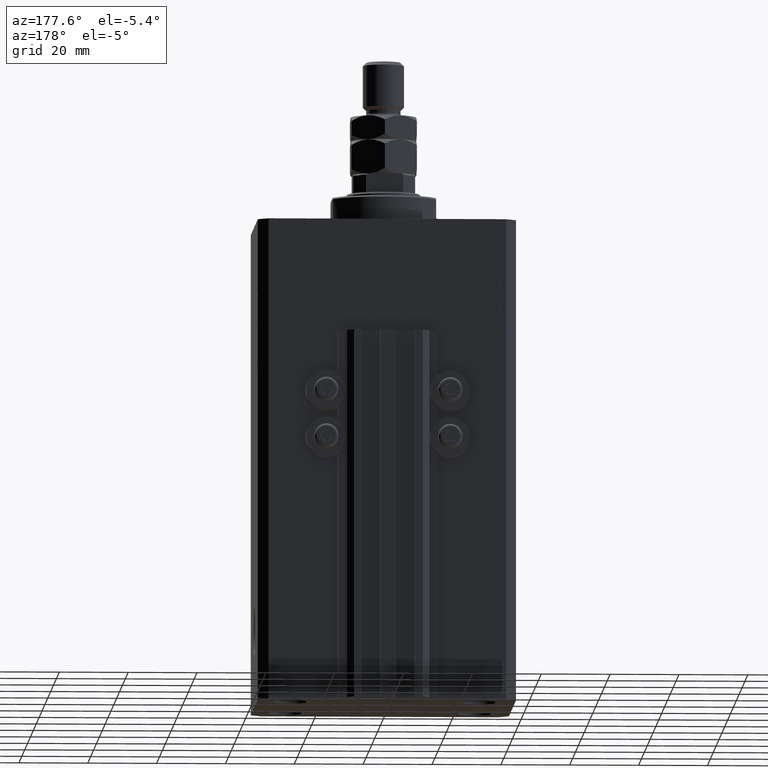
[diagram: clean part render]
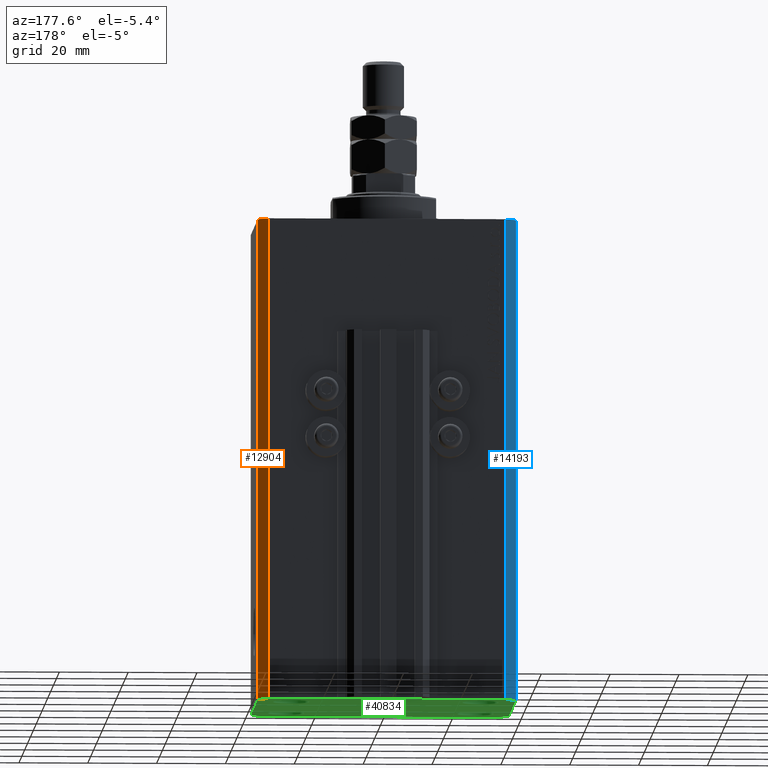
[diagram: same view with three faces highlighted in distinct colors, each labeled with its STEP entity id]
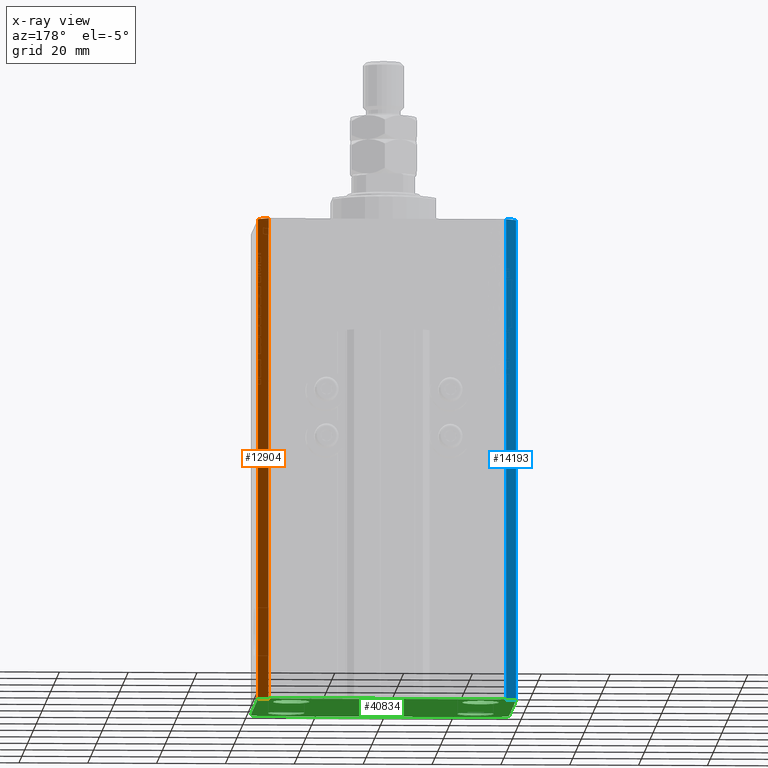
[diagram: x-ray of the same camera — body ghosted, the three highlighted faces saturated]
A machine part, auxiliary view with three faces highlighted in distinct colors.
The next image is the same camera in x-ray (body ghosted, the three faces saturated) — at least one of them is partly hidden behind the body in this view.
Their STEP definitions:

[orange] entity #12904 — the highlighted planar face has unit normal (0.7071, 0.7071, 0).
#3121 = VECTOR ( 'NONE', #46847, 1000.000000000000000 ) ;
#3393 = EDGE_CURVE ( 'NONE', #15188, #3406, #23895, .T. ) ;
#3406 = VERTEX_POINT ( 'NONE', #13272 ) ;
#6123 = CARTESIAN_POINT ( 'NONE',  ( 34.50000000000056843, 27.50000000000000000, -140.0000000000000000 ) ) ;
#6228 = ORIENTED_EDGE ( 'NONE', *, *, #46294, .F. ) ;
#6261 = CARTESIAN_POINT ( 'NONE',  ( 37.50000000000051870, 24.49999999999995381, -140.0000000000000000 ) ) ;
#8514 = CARTESIAN_POINT ( 'NONE',  ( 37.50000000000051870, 24.49999999999995381, -140.0000000000000000 ) ) ;
#10143 = EDGE_LOOP ( 'NONE', ( #12517, #6228, #38664, #46223 ) ) ;
#11400 = DIRECTION ( 'NONE',  ( 0.000000000000000000, 0.000000000000000000, 1.000000000000000000 ) ) ;
#12227 = FACE_OUTER_BOUND ( 'NONE', #10143, .T. ) ;
#12517 = ORIENTED_EDGE ( 'NONE', *, *, #3393, .F. ) ;
#12525 = VECTOR ( 'NONE', #13034, 1000.000000000000114 ) ;
#12904 = ADVANCED_FACE ( 'NONE', ( #12227 ), #46526, .T. ) ;
#12989 = CARTESIAN_POINT ( 'NONE',  ( 37.50000000000051870, 24.49999999999995381, -140.0000000000000000 ) ) ;
#13034 = DIRECTION ( 'NONE',  ( -0.7071067811865364705, 0.7071067811865584529, 0.000000000000000000 ) ) ;
#13272 = CARTESIAN_POINT ( 'NONE',  ( 34.50000000000056843, 27.50000000000000000, 0.000000000000000000 ) ) ;
#15188 = VERTEX_POINT ( 'NONE', #19561 ) ;
#16253 = CARTESIAN_POINT ( 'NONE',  ( 37.50000000000051870, 24.49999999999995381, 0.000000000000000000 ) ) ;
#17631 = DIRECTION ( 'NONE',  ( -0.7071067811865364705, 0.7071067811865584529, 0.000000000000000000 ) ) ;
#18603 = VERTEX_POINT ( 'NONE', #48506 ) ;
#19561 = CARTESIAN_POINT ( 'NONE',  ( 37.50000000000051870, 24.49999999999995381, 0.000000000000000000 ) ) ;
#21194 = LINE ( 'NONE', #6123, #3121 ) ;
#23039 = AXIS2_PLACEMENT_3D ( 'NONE', #8514, #23334, #38383 ) ;
#23334 = DIRECTION ( 'NONE',  ( 0.7071067811865585639, 0.7071067811865364705, -0.000000000000000000 ) ) ;
#23895 = LINE ( 'NONE', #16253, #12525 ) ;
#24155 = VECTOR ( 'NONE', #17631, 1000.000000000000114 ) ;
#28354 = EDGE_CURVE ( 'NONE', #46022, #18603, #32902, .T. ) ;
#30651 = LINE ( 'NONE', #34106, #42485 ) ;
#32902 = LINE ( 'NONE', #6261, #24155 ) ;
#34106 = CARTESIAN_POINT ( 'NONE',  ( 37.50000000000051870, 24.49999999999995381, -140.0000000000000000 ) ) ;
#38383 = DIRECTION ( 'NONE',  ( -0.7071067811865364705, 0.7071067811865585639, 0.000000000000000000 ) ) ;
#38664 = ORIENTED_EDGE ( 'NONE', *, *, #28354, .T. ) ;
#42485 = VECTOR ( 'NONE', #11400, 1000.000000000000000 ) ;
#43462 = EDGE_CURVE ( 'NONE', #18603, #3406, #21194, .T. ) ;
#46022 = VERTEX_POINT ( 'NONE', #12989 ) ;
#46223 = ORIENTED_EDGE ( 'NONE', *, *, #43462, .T. ) ;
#46294 = EDGE_CURVE ( 'NONE', #46022, #15188, #30651, .T. ) ;
#46526 = PLANE ( 'NONE',  #23039 ) ;
#46847 = DIRECTION ( 'NONE',  ( 0.000000000000000000, 0.000000000000000000, 1.000000000000000000 ) ) ;
#48506 = CARTESIAN_POINT ( 'NONE',  ( 34.50000000000056843, 27.50000000000000000, -140.0000000000000000 ) ) ;

[blue] entity #14193 — the highlighted planar face has unit normal (-0.7071, 0.7071, 0).
#3035 = CARTESIAN_POINT ( 'NONE',  ( -34.49999999999999289, 27.50000000000000000, -140.0000000000000000 ) ) ;
#3318 = CARTESIAN_POINT ( 'NONE',  ( -34.49999999999999289, 27.50000000000000000, 0.000000000000000000 ) ) ;
#6861 = CARTESIAN_POINT ( 'NONE',  ( -37.49999999999999289, 24.50000000000000000, -140.0000000000000000 ) ) ;
#8050 = EDGE_CURVE ( 'NONE', #15759, #18055, #46765, .T. ) ;
#8253 = ORIENTED_EDGE ( 'NONE', *, *, #41124, .F. ) ;
#8550 = ORIENTED_EDGE ( 'NONE', *, *, #32521, .F. ) ;
#11690 = LINE ( 'NONE', #3318, #35377 ) ;
#12606 = VERTEX_POINT ( 'NONE', #18188 ) ;
#12654 = DIRECTION ( 'NONE',  ( 0.000000000000000000, 0.000000000000000000, 1.000000000000000000 ) ) ;
#12963 = DIRECTION ( 'NONE',  ( 0.000000000000000000, 0.000000000000000000, 1.000000000000000000 ) ) ;
#13751 = VECTOR ( 'NONE', #12654, 1000.000000000000000 ) ;
#14193 = ADVANCED_FACE ( 'NONE', ( #18347 ), #37329, .T. ) ;
#15263 = AXIS2_PLACEMENT_3D ( 'NONE', #3035, #18103, #36608 ) ;
#15677 = ORIENTED_EDGE ( 'NONE', *, *, #8050, .T. ) ;
#15759 = VERTEX_POINT ( 'NONE', #6861 ) ;
#16366 = LINE ( 'NONE', #46462, #13751 ) ;
#17041 = EDGE_CURVE ( 'NONE', #12606, #15759, #46128, .T. ) ;
#17639 = CARTESIAN_POINT ( 'NONE',  ( -37.49999999999999289, 24.50000000000000000, 0.000000000000000000 ) ) ;
#18055 = VERTEX_POINT ( 'NONE', #17639 ) ;
#18103 = DIRECTION ( 'NONE',  ( -0.7071067811865479058, 0.7071067811865471286, 0.000000000000000000 ) ) ;
#18188 = CARTESIAN_POINT ( 'NONE',  ( -34.49999999999999289, 27.50000000000000000, -140.0000000000000000 ) ) ;
#18347 = FACE_OUTER_BOUND ( 'NONE', #23499, .T. ) ;
#18875 = DIRECTION ( 'NONE',  ( -0.7071067811865471286, -0.7071067811865479058, 0.000000000000000000 ) ) ;
#23400 = ORIENTED_EDGE ( 'NONE', *, *, #17041, .T. ) ;
#23499 = EDGE_LOOP ( 'NONE', ( #8253, #8550, #23400, #15677 ) ) ;
#25584 = VECTOR ( 'NONE', #34534, 1000.000000000000000 ) ;
#26642 = CARTESIAN_POINT ( 'NONE',  ( -34.49999999999999289, 27.50000000000000000, -140.0000000000000000 ) ) ;
#30214 = VERTEX_POINT ( 'NONE', #33894 ) ;
#32521 = EDGE_CURVE ( 'NONE', #12606, #30214, #16366, .T. ) ;
#33894 = CARTESIAN_POINT ( 'NONE',  ( -34.49999999999999289, 27.50000000000000000, 0.000000000000000000 ) ) ;
#34534 = DIRECTION ( 'NONE',  ( -0.7071067811865471286, -0.7071067811865479058, 0.000000000000000000 ) ) ;
#35377 = VECTOR ( 'NONE', #18875, 1000.000000000000000 ) ;
#36608 = DIRECTION ( 'NONE',  ( -0.7071067811865471286, -0.7071067811865479058, 0.000000000000000000 ) ) ;
#37329 = PLANE ( 'NONE',  #15263 ) ;
#41124 = EDGE_CURVE ( 'NONE', #30214, #18055, #11690, .T. ) ;
#43332 = VECTOR ( 'NONE', #12963, 1000.000000000000000 ) ;
#46128 = LINE ( 'NONE', #26642, #25584 ) ;
#46277 = CARTESIAN_POINT ( 'NONE',  ( -37.49999999999999289, 24.50000000000000000, -140.0000000000000000 ) ) ;
#46462 = CARTESIAN_POINT ( 'NONE',  ( -34.49999999999999289, 27.50000000000000000, -140.0000000000000000 ) ) ;
#46765 = LINE ( 'NONE', #46277, #43332 ) ;

[green] entity #40834 — the highlighted planar face has unit normal (0, 0, 1).
#43 = EDGE_CURVE ( 'NONE', #43042, #26188, #43144, .T. ) ;
#767 = DIRECTION ( 'NONE',  ( 0.7071067811865474617, 0.7071067811865474617, 0.000000000000000000 ) ) ;
#925 = EDGE_CURVE ( 'NONE', #15759, #21302, #38767, .T. ) ;
#1163 = CIRCLE ( 'NONE', #38180, 5.250000000000000888 ) ;
#1880 = LINE ( 'NONE', #31980, #39359 ) ;
#2528 = ORIENTED_EDGE ( 'NONE', *, *, #925, .F. ) ;
#4097 = DIRECTION ( 'NONE',  ( 1.000000000000000000, 0.000000000000000000, 0.000000000000000000 ) ) ;
#4845 = DIRECTION ( 'NONE',  ( -0.000000000000000000, -0.000000000000000000, -1.000000000000000000 ) ) ;
#5081 = EDGE_LOOP ( 'NONE', ( #28877, #42931 ) ) ;
#5121 = LINE ( 'NONE', #20185, #34077 ) ;
#5395 = DIRECTION ( 'NONE',  ( -1.000000000000000000, 0.000000000000000000, 0.000000000000000000 ) ) ;
#5586 = CIRCLE ( 'NONE', #33159, 5.250000000000000888 ) ;
#6261 = CARTESIAN_POINT ( 'NONE',  ( 37.50000000000051870, 24.49999999999995381, -140.0000000000000000 ) ) ;
#6861 = CARTESIAN_POINT ( 'NONE',  ( -37.49999999999999289, 24.50000000000000000, -140.0000000000000000 ) ) ;
#7386 = CARTESIAN_POINT ( 'NONE',  ( -27.50000000000000000, 17.49999999999999645, -140.0000000000000000 ) ) ;
#7436 = EDGE_CURVE ( 'NONE', #20187, #33546, #45637, .T. ) ;
#7790 = CARTESIAN_POINT ( 'NONE',  ( -27.49999999999999289, -17.50000000000000000, -140.0000000000000000 ) ) ;
#8369 = AXIS2_PLACEMENT_3D ( 'NONE', #32496, #21155, #28309 ) ;
#8545 = EDGE_CURVE ( 'NONE', #16848, #11132, #19529, .T. ) ;
#8702 = DIRECTION ( 'NONE',  ( 1.000000000000000000, 0.000000000000000000, 0.000000000000000000 ) ) ;
#9135 = DIRECTION ( 'NONE',  ( 1.000000000000000000, 0.000000000000000000, 0.000000000000000000 ) ) ;
#10190 = VERTEX_POINT ( 'NONE', #45816 ) ;
#10309 = CARTESIAN_POINT ( 'NONE',  ( -32.74999999999999289, -17.50000000000000000, -140.0000000000000000 ) ) ;
#11057 = ORIENTED_EDGE ( 'NONE', *, *, #28140, .F. ) ;
#11132 = VERTEX_POINT ( 'NONE', #16906 ) ;
#11527 = CARTESIAN_POINT ( 'NONE',  ( -34.49999999999998579, -27.49999999999999645, -140.0000000000000000 ) ) ;
#11797 = CARTESIAN_POINT ( 'NONE',  ( 34.49999999999999289, -27.49999999999999645, -140.0000000000000000 ) ) ;
#12123 = CARTESIAN_POINT ( 'NONE',  ( -37.49999999999999289, 24.50000000000000000, -140.0000000000000000 ) ) ;
#12167 = CARTESIAN_POINT ( 'NONE',  ( 27.49999999999999289, -17.50000000000000000, -140.0000000000000000 ) ) ;
#12606 = VERTEX_POINT ( 'NONE', #18188 ) ;
#12989 = CARTESIAN_POINT ( 'NONE',  ( 37.50000000000051870, 24.49999999999995381, -140.0000000000000000 ) ) ;
#13584 = DIRECTION ( 'NONE',  ( -0.000000000000000000, -0.000000000000000000, -1.000000000000000000 ) ) ;
#13667 = EDGE_LOOP ( 'NONE', ( #20348, #32485 ) ) ;
#14722 = AXIS2_PLACEMENT_3D ( 'NONE', #7386, #22925, #37986 ) ;
#14729 = CARTESIAN_POINT ( 'NONE',  ( -37.49999999999999289, -24.50000000000000000, -140.0000000000000000 ) ) ;
#15142 = DIRECTION ( 'NONE',  ( -0.000000000000000000, -0.000000000000000000, -1.000000000000000000 ) ) ;
#15344 = CARTESIAN_POINT ( 'NONE',  ( 34.49999999999999289, -27.49999999999999645, -140.0000000000000000 ) ) ;
#15608 = VERTEX_POINT ( 'NONE', #20969 ) ;
#15759 = VERTEX_POINT ( 'NONE', #6861 ) ;
#16038 = LINE ( 'NONE', #31805, #19750 ) ;
#16338 = AXIS2_PLACEMENT_3D ( 'NONE', #32086, #13584, #9135 ) ;
#16848 = VERTEX_POINT ( 'NONE', #11797 ) ;
#16906 = CARTESIAN_POINT ( 'NONE',  ( 37.49999999999999289, -24.50000000000000000, -140.0000000000000000 ) ) ;
#17041 = EDGE_CURVE ( 'NONE', #12606, #15759, #46128, .T. ) ;
#17096 = CIRCLE ( 'NONE', #14722, 5.250000000000000888 ) ;
#17155 = ORIENTED_EDGE ( 'NONE', *, *, #7436, .F. ) ;
#17631 = DIRECTION ( 'NONE',  ( -0.7071067811865364705, 0.7071067811865584529, 0.000000000000000000 ) ) ;
#18188 = CARTESIAN_POINT ( 'NONE',  ( -34.49999999999999289, 27.50000000000000000, -140.0000000000000000 ) ) ;
#18361 = CARTESIAN_POINT ( 'NONE',  ( 27.50000000000000000, 17.49999999999999289, -140.0000000000000000 ) ) ;
#18603 = VERTEX_POINT ( 'NONE', #48506 ) ;
#18669 = ORIENTED_EDGE ( 'NONE', *, *, #35074, .F. ) ;
#18912 = DIRECTION ( 'NONE',  ( 0.7071067811865483499, -0.7071067811865466846, 0.000000000000000000 ) ) ;
#18918 = ORIENTED_EDGE ( 'NONE', *, *, #46828, .F. ) ;
#19390 = EDGE_LOOP ( 'NONE', ( #30095, #38172, #47041, #27696, #20770, #18918, #2528, #48189 ) ) ;
#19529 = LINE ( 'NONE', #15344, #30707 ) ;
#19750 = VECTOR ( 'NONE', #5395, 1000.000000000000000 ) ;
#20185 = CARTESIAN_POINT ( 'NONE',  ( -34.49999999999998579, -27.49999999999999645, -140.0000000000000000 ) ) ;
#20187 = VERTEX_POINT ( 'NONE', #43914 ) ;
#20348 = ORIENTED_EDGE ( 'NONE', *, *, #32426, .F. ) ;
#20448 = EDGE_CURVE ( 'NONE', #33546, #20187, #48490, .T. ) ;
#20681 = DIRECTION ( 'NONE',  ( 1.000000000000000000, 0.000000000000000000, 0.000000000000000000 ) ) ;
#20770 = ORIENTED_EDGE ( 'NONE', *, *, #38536, .F. ) ;
#20933 = FACE_BOUND ( 'NONE', #23827, .T. ) ;
#20969 = CARTESIAN_POINT ( 'NONE',  ( 32.74999999999999289, -17.50000000000000000, -140.0000000000000000 ) ) ;
#21155 = DIRECTION ( 'NONE',  ( -0.000000000000000000, -0.000000000000000000, -1.000000000000000000 ) ) ;
#21302 = VERTEX_POINT ( 'NONE', #14729 ) ;
#21426 = FACE_BOUND ( 'NONE', #13667, .T. ) ;
#21572 = AXIS2_PLACEMENT_3D ( 'NONE', #18361, #15142, #22531 ) ;
#22510 = AXIS2_PLACEMENT_3D ( 'NONE', #7790, #26800, #4097 ) ;
#22531 = DIRECTION ( 'NONE',  ( 1.000000000000000000, 0.000000000000000000, 0.000000000000000000 ) ) ;
#22546 = CARTESIAN_POINT ( 'NONE',  ( -22.25000000000000000, 17.49999999999999645, -140.0000000000000000 ) ) ;
#22925 = DIRECTION ( 'NONE',  ( -0.000000000000000000, -0.000000000000000000, -1.000000000000000000 ) ) ;
#23119 = CARTESIAN_POINT ( 'NONE',  ( -27.49999999999999289, -17.50000000000000000, -140.0000000000000000 ) ) ;
#23599 = EDGE_CURVE ( 'NONE', #10190, #15608, #40681, .T. ) ;
#23827 = EDGE_LOOP ( 'NONE', ( #17155, #27802 ) ) ;
#24155 = VECTOR ( 'NONE', #17631, 1000.000000000000114 ) ;
#24876 = FACE_BOUND ( 'NONE', #5081, .T. ) ;
#25200 = VECTOR ( 'NONE', #18912, 1000.000000000000000 ) ;
#25399 = VERTEX_POINT ( 'NONE', #35492 ) ;
#25584 = VECTOR ( 'NONE', #34534, 1000.000000000000000 ) ;
#26188 = VERTEX_POINT ( 'NONE', #46853 ) ;
#26642 = CARTESIAN_POINT ( 'NONE',  ( -34.49999999999999289, 27.50000000000000000, -140.0000000000000000 ) ) ;
#26800 = DIRECTION ( 'NONE',  ( -0.000000000000000000, -0.000000000000000000, -1.000000000000000000 ) ) ;
#27400 = VERTEX_POINT ( 'NONE', #11527 ) ;
#27696 = ORIENTED_EDGE ( 'NONE', *, *, #8545, .F. ) ;
#27802 = ORIENTED_EDGE ( 'NONE', *, *, #20448, .F. ) ;
#28140 = EDGE_CURVE ( 'NONE', #32422, #25399, #17096, .T. ) ;
#28253 = VECTOR ( 'NONE', #34577, 1000.000000000000000 ) ;
#28309 = DIRECTION ( 'NONE',  ( 1.000000000000000000, 0.000000000000000000, 0.000000000000000000 ) ) ;
#28354 = EDGE_CURVE ( 'NONE', #46022, #18603, #32902, .T. ) ;
#28649 = CIRCLE ( 'NONE', #21572, 5.250000000000000888 ) ;
#28823 = PLANE ( 'NONE',  #42466 ) ;
#28877 = ORIENTED_EDGE ( 'NONE', *, *, #29445, .F. ) ;
#29445 = EDGE_CURVE ( 'NONE', #26188, #43042, #28649, .T. ) ;
#30095 = ORIENTED_EDGE ( 'NONE', *, *, #34840, .F. ) ;
#30682 = DIRECTION ( 'NONE',  ( -0.000000000000000000, -0.000000000000000000, -1.000000000000000000 ) ) ;
#30707 = VECTOR ( 'NONE', #767, 1000.000000000000114 ) ;
#31805 = CARTESIAN_POINT ( 'NONE',  ( 34.50000000000056843, 27.50000000000000000, -140.0000000000000000 ) ) ;
#31980 = CARTESIAN_POINT ( 'NONE',  ( 37.49999999999999289, -24.50000000000000000, -140.0000000000000000 ) ) ;
#32086 = CARTESIAN_POINT ( 'NONE',  ( 27.50000000000000000, 17.49999999999999289, -140.0000000000000000 ) ) ;
#32422 = VERTEX_POINT ( 'NONE', #22546 ) ;
#32426 = EDGE_CURVE ( 'NONE', #15608, #10190, #1163, .T. ) ;
#32485 = ORIENTED_EDGE ( 'NONE', *, *, #23599, .F. ) ;
#32496 = CARTESIAN_POINT ( 'NONE',  ( 27.49999999999999289, -17.50000000000000000, -140.0000000000000000 ) ) ;
#32762 = FACE_OUTER_BOUND ( 'NONE', #19390, .T. ) ;
#32902 = LINE ( 'NONE', #6261, #24155 ) ;
#33022 = AXIS2_PLACEMENT_3D ( 'NONE', #23119, #4845, #41625 ) ;
#33159 = AXIS2_PLACEMENT_3D ( 'NONE', #48546, #36968, #41393 ) ;
#33546 = VERTEX_POINT ( 'NONE', #10309 ) ;
#33704 = CARTESIAN_POINT ( 'NONE',  ( -37.49999999999999289, -24.50000000000000000, -140.0000000000000000 ) ) ;
#34077 = VECTOR ( 'NONE', #20681, 1000.000000000000000 ) ;
#34534 = DIRECTION ( 'NONE',  ( -0.7071067811865471286, -0.7071067811865479058, 0.000000000000000000 ) ) ;
#34577 = DIRECTION ( 'NONE',  ( 0.000000000000000000, -1.000000000000000000, 0.000000000000000000 ) ) ;
#34840 = EDGE_CURVE ( 'NONE', #18603, #12606, #16038, .T. ) ;
#35074 = EDGE_CURVE ( 'NONE', #25399, #32422, #5586, .T. ) ;
#35492 = CARTESIAN_POINT ( 'NONE',  ( -32.75000000000000000, 17.49999999999999645, -140.0000000000000000 ) ) ;
#36220 = CARTESIAN_POINT ( 'NONE',  ( 0.000000000000000000, 0.000000000000000000, -140.0000000000000000 ) ) ;
#36968 = DIRECTION ( 'NONE',  ( -0.000000000000000000, -0.000000000000000000, -1.000000000000000000 ) ) ;
#37739 = CARTESIAN_POINT ( 'NONE',  ( 22.25000000000000000, 17.49999999999999289, -140.0000000000000000 ) ) ;
#37986 = DIRECTION ( 'NONE',  ( 1.000000000000000000, 0.000000000000000000, 0.000000000000000000 ) ) ;
#38172 = ORIENTED_EDGE ( 'NONE', *, *, #28354, .F. ) ;
#38180 = AXIS2_PLACEMENT_3D ( 'NONE', #12167, #30682, #8702 ) ;
#38536 = EDGE_CURVE ( 'NONE', #27400, #16848, #5121, .T. ) ;
#38767 = LINE ( 'NONE', #12123, #28253 ) ;
#39359 = VECTOR ( 'NONE', #47032, 1000.000000000000000 ) ;
#39926 = FACE_BOUND ( 'NONE', #43495, .T. ) ;
#40681 = CIRCLE ( 'NONE', #8369, 5.250000000000000888 ) ;
#40834 = ADVANCED_FACE ( 'NONE', ( #20933, #21426, #24876, #39926, #32762 ), #28823, .F. ) ;
#41393 = DIRECTION ( 'NONE',  ( 1.000000000000000000, 0.000000000000000000, 0.000000000000000000 ) ) ;
#41625 = DIRECTION ( 'NONE',  ( 1.000000000000000000, 0.000000000000000000, 0.000000000000000000 ) ) ;
#42466 = AXIS2_PLACEMENT_3D ( 'NONE', #36220, #44115, #43388 ) ;
#42931 = ORIENTED_EDGE ( 'NONE', *, *, #43, .F. ) ;
#43042 = VERTEX_POINT ( 'NONE', #37739 ) ;
#43144 = CIRCLE ( 'NONE', #16338, 5.250000000000000888 ) ;
#43388 = DIRECTION ( 'NONE',  ( 1.000000000000000000, 0.000000000000000000, -0.000000000000000000 ) ) ;
#43495 = EDGE_LOOP ( 'NONE', ( #11057, #18669 ) ) ;
#43914 = CARTESIAN_POINT ( 'NONE',  ( -22.24999999999999289, -17.50000000000000000, -140.0000000000000000 ) ) ;
#44115 = DIRECTION ( 'NONE',  ( 0.000000000000000000, 0.000000000000000000, 1.000000000000000000 ) ) ;
#45053 = LINE ( 'NONE', #33704, #25200 ) ;
#45637 = CIRCLE ( 'NONE', #33022, 5.250000000000000888 ) ;
#45816 = CARTESIAN_POINT ( 'NONE',  ( 22.24999999999999289, -17.50000000000000000, -140.0000000000000000 ) ) ;
#46022 = VERTEX_POINT ( 'NONE', #12989 ) ;
#46056 = EDGE_CURVE ( 'NONE', #11132, #46022, #1880, .T. ) ;
#46128 = LINE ( 'NONE', #26642, #25584 ) ;
#46828 = EDGE_CURVE ( 'NONE', #21302, #27400, #45053, .T. ) ;
#46853 = CARTESIAN_POINT ( 'NONE',  ( 32.75000000000000000, 17.49999999999999289, -140.0000000000000000 ) ) ;
#47032 = DIRECTION ( 'NONE',  ( 1.076236605503979380E-14, 1.000000000000000000, 0.000000000000000000 ) ) ;
#47041 = ORIENTED_EDGE ( 'NONE', *, *, #46056, .F. ) ;
#48189 = ORIENTED_EDGE ( 'NONE', *, *, #17041, .F. ) ;
#48490 = CIRCLE ( 'NONE', #22510, 5.250000000000000888 ) ;
#48506 = CARTESIAN_POINT ( 'NONE',  ( 34.50000000000056843, 27.50000000000000000, -140.0000000000000000 ) ) ;
#48546 = CARTESIAN_POINT ( 'NONE',  ( -27.50000000000000000, 17.49999999999999645, -140.0000000000000000 ) ) ;